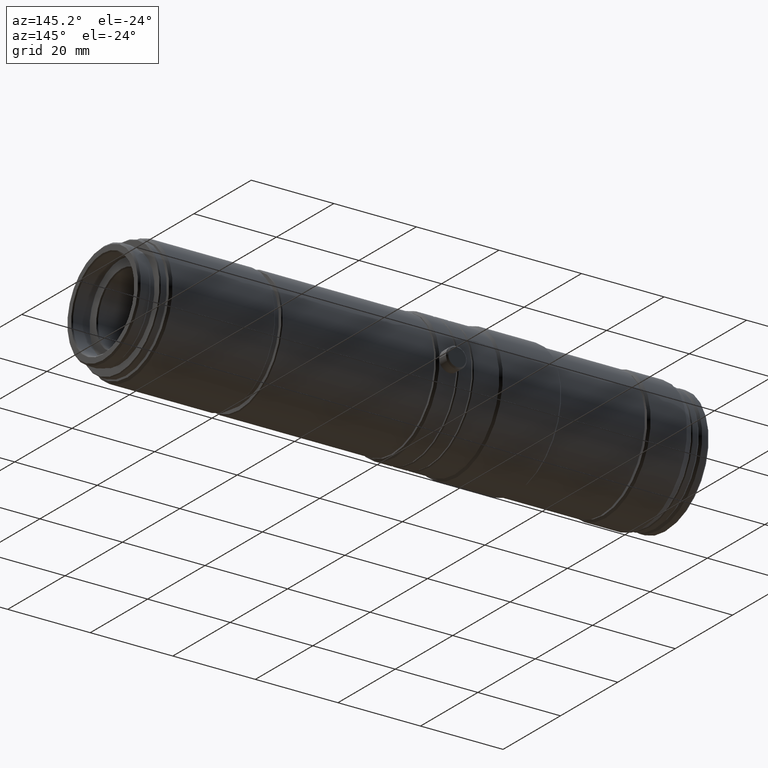
[diagram: clean part render]
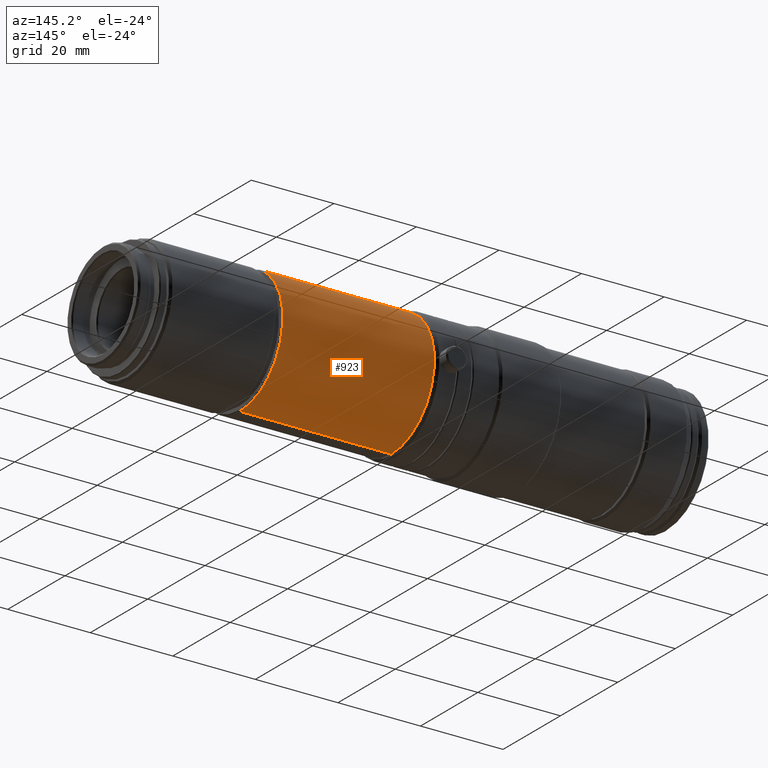
[diagram: same view with one face highlighted and labeled with its STEP entity id]
A machine part, auxiliary view. The second image highlights one B-rep face of the part: STEP entity #923.
In plain terms, the highlighted cylindrical surface (partial cylindrical patch) has radius 15 mm, axis along (-1, -0, -0).
Its self-contained STEP definition (entity closure, byte-faithful):
#6 = ORIENTED_EDGE ( 'NONE', *, *, #224, .T. ) ;
#56 = CYLINDRICAL_SURFACE ( 'NONE', #2894, 14.99999999999985434 ) ;
#157 = DIRECTION ( 'NONE',  ( -1.000000000000000000, -0.0000000000000000000, -0.0000000000000000000 ) ) ;
#202 = CARTESIAN_POINT ( 'NONE',  ( -80.99597258271282385, -1.734723475976807094E-13, 14.99999999999985434 ) ) ;
#224 = EDGE_CURVE ( 'NONE', #364, #2016, #540, .T. ) ;
#364 = VERTEX_POINT ( 'NONE', #3548 ) ;
#540 = LINE ( 'NONE', #1905, #4259 ) ;
#665 = CIRCLE ( 'NONE', #1787, 14.99999999999985434 ) ;
#871 = LINE ( 'NONE', #202, #1851 ) ;
#923 = ADVANCED_FACE ( 'NONE', ( #2184 ), #56, .T. ) ;
#926 = CARTESIAN_POINT ( 'NONE',  ( -46.72599999999990672, -1.734723475976807094E-13, 0.0000000000000000000 ) ) ;
#962 = DIRECTION ( 'NONE',  ( 0.0000000000000000000, 0.0000000000000000000, 1.000000000000000000 ) ) ;
#1004 = DIRECTION ( 'NONE',  ( 0.0000000000000000000, 0.0000000000000000000, 1.000000000000000000 ) ) ;
#1374 = EDGE_CURVE ( 'NONE', #3643, #364, #1770, .T. ) ;
#1453 = ORIENTED_EDGE ( 'NONE', *, *, #2930, .F. ) ;
#1488 = EDGE_CURVE ( 'NONE', #3643, #3033, #871, .T. ) ;
#1494 = DIRECTION ( 'NONE',  ( -1.000000000000000000, -0.0000000000000000000, -0.0000000000000000000 ) ) ;
#1770 = CIRCLE ( 'NONE', #3199, 14.99999999999985434 ) ;
#1787 = AXIS2_PLACEMENT_3D ( 'NONE', #3558, #4562, #1004 ) ;
#1851 = VECTOR ( 'NONE', #157, 1000.000000000000000 ) ;
#1905 = CARTESIAN_POINT ( 'NONE',  ( -80.99597258271282385, -1.716353773989597075E-13, -14.99999999999985434 ) ) ;
#1975 = DIRECTION ( 'NONE',  ( -1.000000000000000000, -0.0000000000000000000, -0.0000000000000000000 ) ) ;
#1979 = ORIENTED_EDGE ( 'NONE', *, *, #1374, .T. ) ;
#2016 = VERTEX_POINT ( 'NONE', #3027 ) ;
#2068 = CARTESIAN_POINT ( 'NONE',  ( -46.72599999999990672, -1.734723475976807094E-13, 14.99999999999985434 ) ) ;
#2184 = FACE_OUTER_BOUND ( 'NONE', #2533, .T. ) ;
#2533 = EDGE_LOOP ( 'NONE', ( #1979, #6, #1453, #3571 ) ) ;
#2565 = DIRECTION ( 'NONE',  ( 0.0000000000000000000, 0.0000000000000000000, 1.000000000000000000 ) ) ;
#2894 = AXIS2_PLACEMENT_3D ( 'NONE', #4052, #1494, #2565 ) ;
#2930 = EDGE_CURVE ( 'NONE', #3033, #2016, #665, .T. ) ;
#3020 = CARTESIAN_POINT ( 'NONE',  ( -83.42599999999988825, -1.734723475976807094E-13, 14.99999999999985434 ) ) ;
#3027 = CARTESIAN_POINT ( 'NONE',  ( -83.42599999999988825, -1.716353773989597075E-13, -14.99999999999985434 ) ) ;
#3033 = VERTEX_POINT ( 'NONE', #3020 ) ;
#3057 = DIRECTION ( 'NONE',  ( -1.000000000000000000, -0.0000000000000000000, -0.0000000000000000000 ) ) ;
#3199 = AXIS2_PLACEMENT_3D ( 'NONE', #926, #3057, #962 ) ;
#3548 = CARTESIAN_POINT ( 'NONE',  ( -46.72599999999990672, -1.716353773989597075E-13, -14.99999999999985434 ) ) ;
#3558 = CARTESIAN_POINT ( 'NONE',  ( -83.42599999999988825, -1.734723475976807094E-13, 0.0000000000000000000 ) ) ;
#3571 = ORIENTED_EDGE ( 'NONE', *, *, #1488, .F. ) ;
#3643 = VERTEX_POINT ( 'NONE', #2068 ) ;
#4052 = CARTESIAN_POINT ( 'NONE',  ( -80.99597258271282385, -1.734723475976807094E-13, 0.0000000000000000000 ) ) ;
#4259 = VECTOR ( 'NONE', #1975, 1000.000000000000000 ) ;
#4562 = DIRECTION ( 'NONE',  ( -1.000000000000000000, -0.0000000000000000000, -0.0000000000000000000 ) ) ;